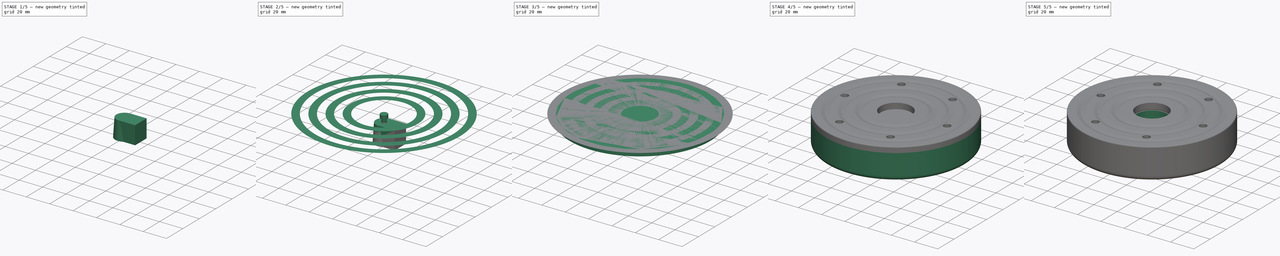
[diagram: build sequence overview — one tinted view per stage of 5, left to right]
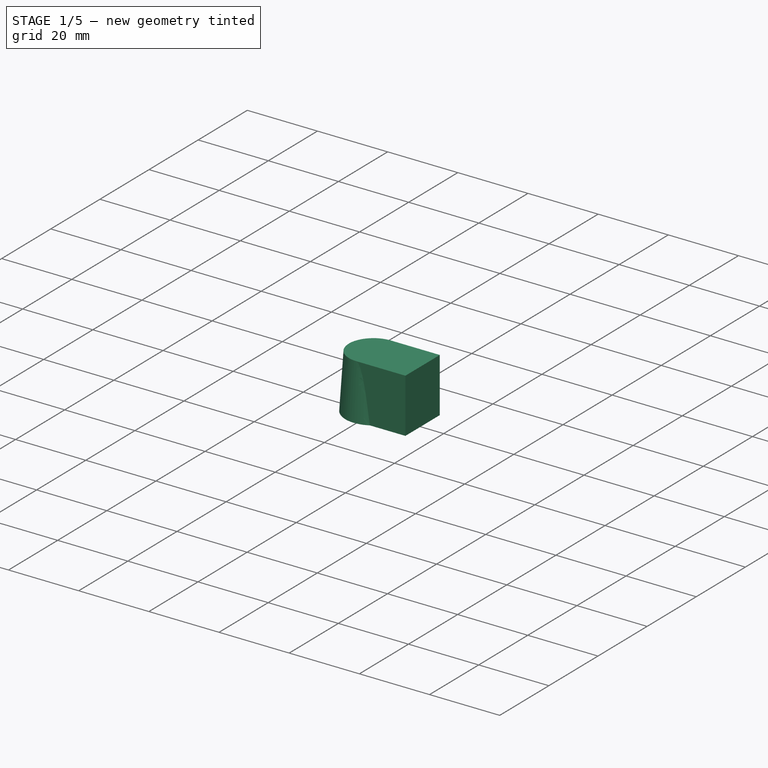
[diagram: stage 1 of 5 — iso view after this stage's code; geometry added in this stage tinted green]
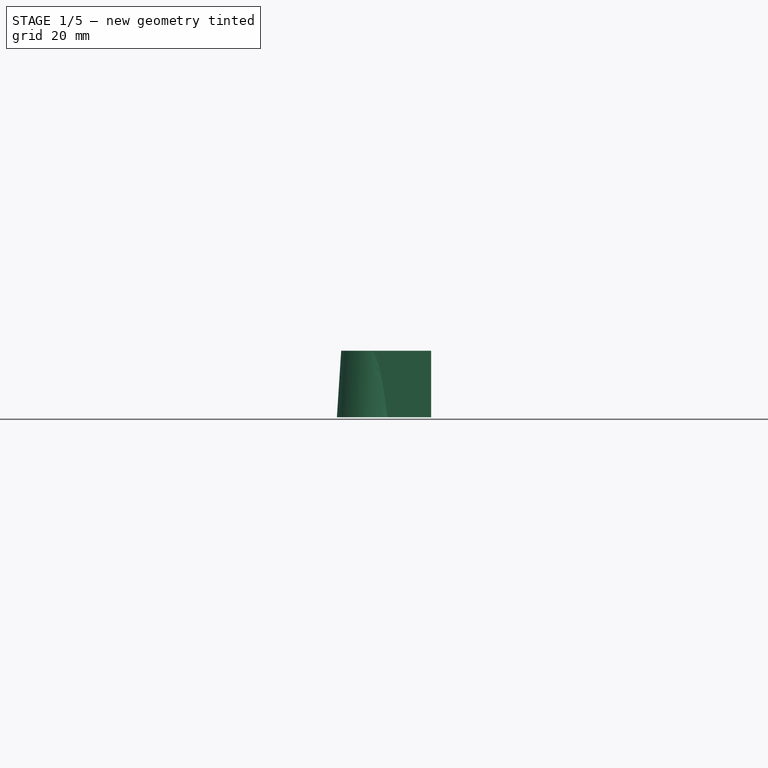
[diagram: stage 1 of 5 — front view after this stage's code; geometry added in this stage tinted green]
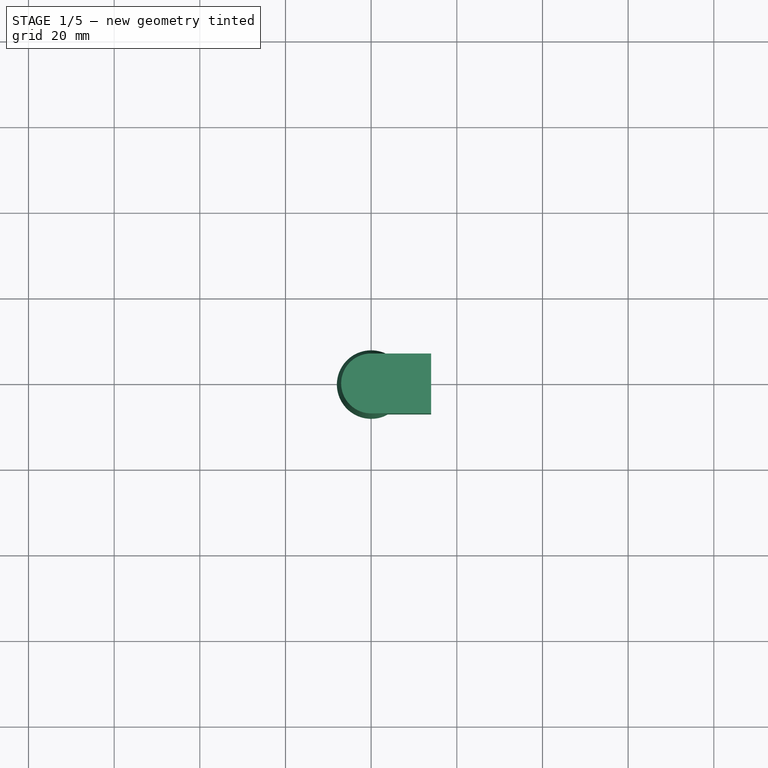
[diagram: stage 1 of 5 — top view after this stage's code; geometry added in this stage tinted green]
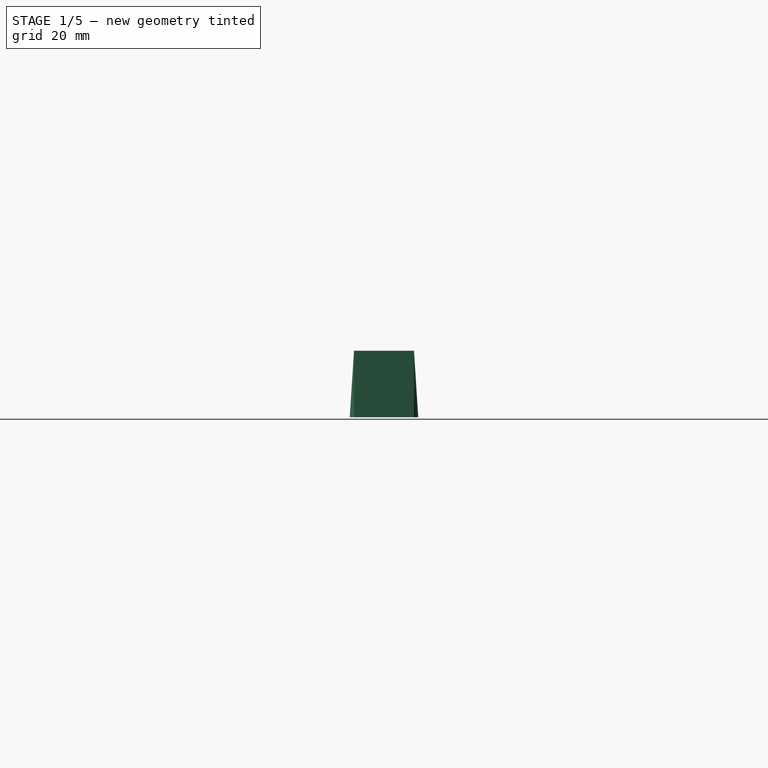
[diagram: stage 1 of 5 — right view after this stage's code; geometry added in this stage tinted green]
FCSTD DOCUMENT  (FreeCAD 0.21R33771 (Git))
Label: weight_disk_smaller
License: All rights reserved
LicenseURL: http://en.wikipedia.org/wiki/All_rights_reserved
objects: Part::Cylinder×11, Part::Fillet×6, Part::FeaturePython×6, Part::MultiFuse×6, Part::Cut×5, Part::Revolution×2, Sketcher::SketchObject×1, Part::Circle×1, Part::Cone×1, Part::Box×1
note: 38 computed .brp shape members not serialized (recipe doc carries the construction recipe); baked Part::Feature solids carry a one-line shape summary decoded from their .brp

FEATURE [Part::Cylinder] Cylinder001  label="outer wall cylinder"
  Angle = 360
  AttacherType = Attacher::AttachEngine3D
  FirstAngle = 0
  Height = 22
  Radius = 60
  SecondAngle = 0
FEATURE [Part::Cylinder] Cylinder002  label="outer inner wall cylinder"
  Angle = 360
  AttacherType = Attacher::AttachEngine3D
  FirstAngle = 0
  Height = 22
  Radius = 56
  SecondAngle = 0
  expr: Height = <<outer wall cylinder>>.Height
  expr: Radius = <<outer wall cylinder>>.Radius - 4 mm
FEATURE [Part::Cylinder] Cylinder004  label="bottom disk"
  Angle = 360
  AttacherType = Attacher::AttachEngine3D
  FirstAngle = 0
  Height = 5
  Radius = 56
  SecondAngle = 0
  expr: Radius = <<outer inner wall cylinder>>.Radius
FEATURE [Part::Cone] Cone
  Angle = 360
  AttacherType = Attacher::AttachEngine3D
  Height = 15.5
  Radius1 = 8
  Radius2 = 7
  expr: Height = <<outer wall cylinder>>.Height - <<bottom disk>>.Height - 1.5 mm
FEATURE [Part::Cylinder] Cylinder010  label="Cylinder"
  Angle = 360
  AttacherType = Attacher::AttachEngine3D
  FirstAngle = 0
  Height = 15.5
  Radius = 2.2
  SecondAngle = 0
  expr: Height = Cone.Height
FEATURE [Part::Box] Box  label="Cube"
  AttacherType = Attacher::AttachEngine3D
  Height = 15.5
  Length = 14
  Placement = pos=(0,-7,0) rot=(0,0,1;0rad)
  Width = 14
  expr: .Placement.Base.y = -Width / 2
  expr: Height = Cone.Height
  expr: Length = <<outer wall cylinder>>.Radius - PolarArray.Radius - (<<outer wall cylinder>>.Radius - <<outer inner wall cylinder>>.Radius) / 2
  expr: Width = Cone.Radius2 * 2
FEATURE [Part::MultiFuse] Fusion006  label="stand fusion"
  Shapes = -> [Box,Cone]
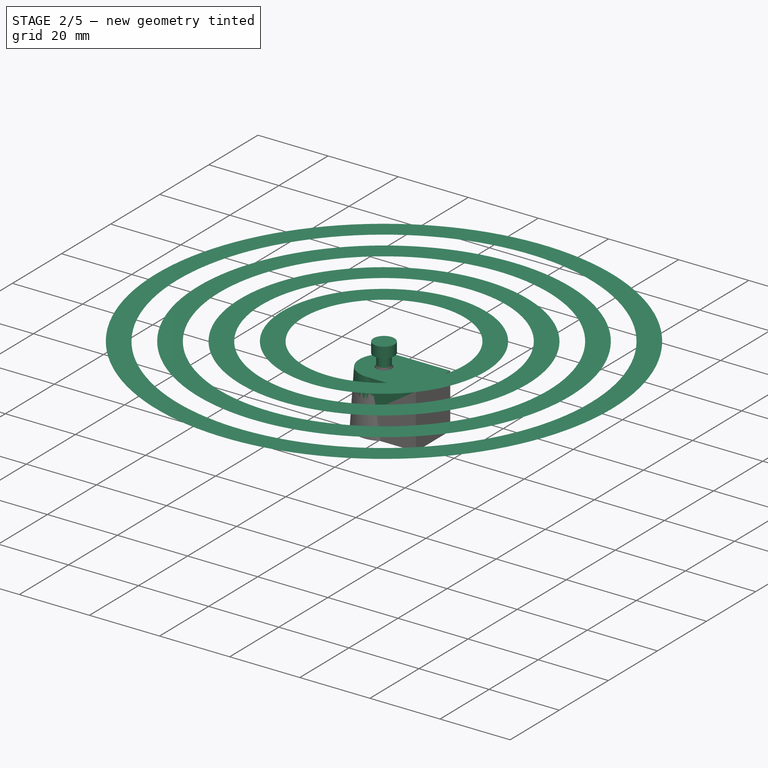
[diagram: stage 2 of 5 — iso view after this stage's code; geometry added in this stage tinted green]
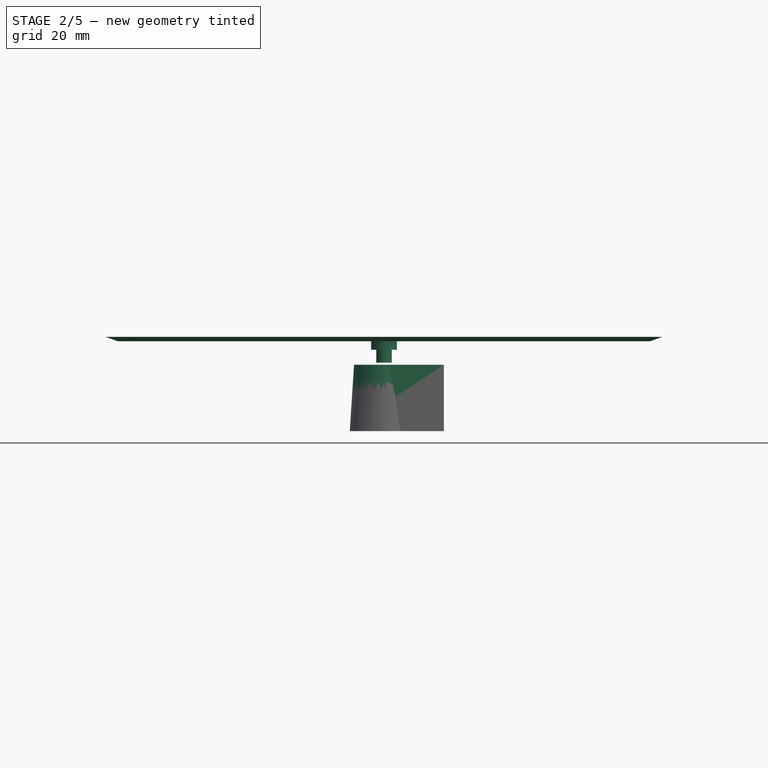
[diagram: stage 2 of 5 — front view after this stage's code; geometry added in this stage tinted green]
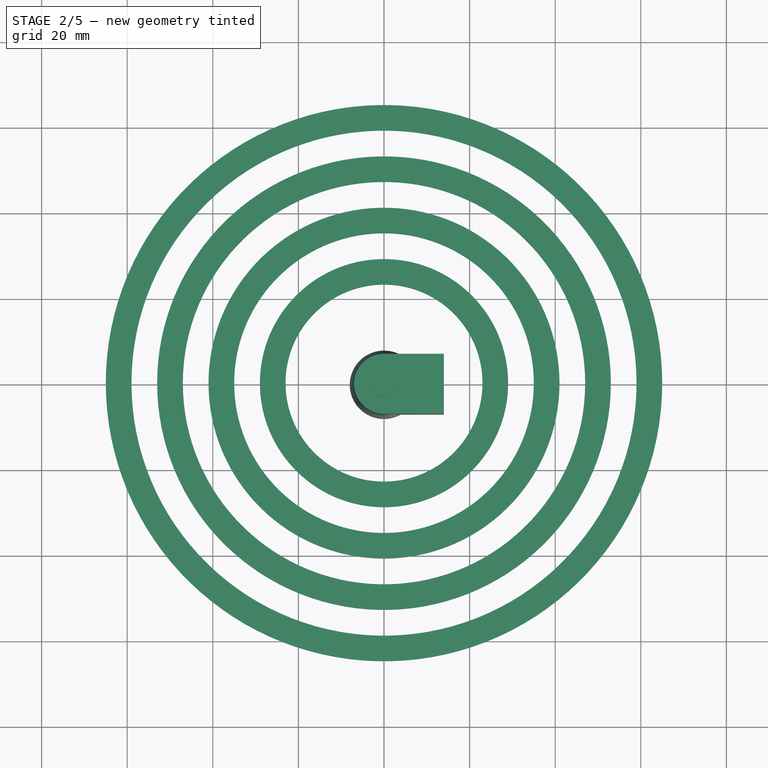
[diagram: stage 2 of 5 — top view after this stage's code; geometry added in this stage tinted green]
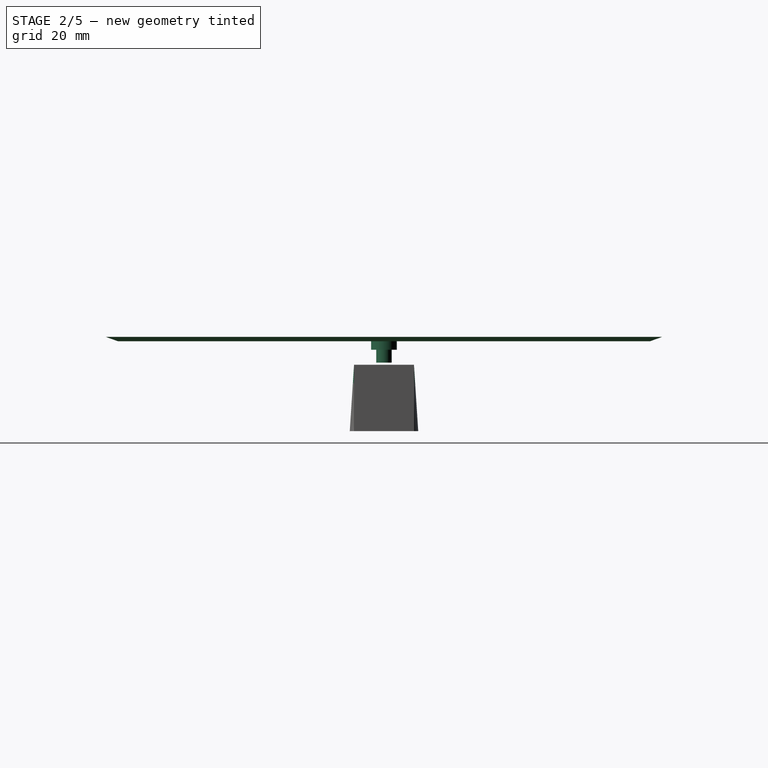
[diagram: stage 2 of 5 — right view after this stage's code; geometry added in this stage tinted green]
FEATURE [Part::Cylinder] Cylinder005  label="top disk center"
  Angle = 360
  AttacherType = Attacher::AttachEngine3D
  FirstAngle = 0
  Height = 6
  Placement = pos=(0,0,21) rot=(0,0,1;0rad)
  Radius = 56
  SecondAngle = 0
  expr: .Placement.Base.z = <<outer wall cylinder>>.Height - 1 mm
  expr: Radius = <<outer inner wall cylinder>>.Radius
FEATURE [Part::Cylinder] Cylinder006  label="top disk"
  Angle = 360
  AttacherType = Attacher::AttachEngine3D
  FirstAngle = 0
  Height = 5
  Placement = pos=(0,0,22) rot=(0,0,1;0rad)
  Radius = 60
  SecondAngle = 0
  expr: .Placement.Base.z = <<outer wall cylinder>>.Height
  expr: Height = <<top disk center>>.Height - 1 mm
  expr: Radius = <<outer wall cylinder>>.Radius
FEATURE [Part::FeaturePython] PolarArray001  # WARN: FeaturePython — macro-defined, semantics opaque (R4)
  Alignment = 0
  AttacherType = Attacher::AttachEngine3D
  CellStart = A1
  Count = 6
  DistributionLaw = 0
  EndInclusive = false
  ExposePlacement = false
  FlipX = false
  FlipZ = false
  GeneratorMode = 0
  MarkerShape = 1
  MarkerSize = 0
  NumElements = 6
  OrientMode = 2
  Radius = 44
  Reverse = false
  SpanEnd = 360
  SpanStart = 0
  Step = 60
  Support = -> [Cylinder001]
  Type = lattice2PolarArray2.PolarArray
  UseArcRadius = false
  UseArcRange = 0
  VSGVersion = 1
  Values = 0.0 | 60.0 | 120.0 | 180.0 | 240.0 | 300.0
  ValuesSource = 2
  isLattice = 1
  expr: Count = PolarArray.Count
  expr: Radius = PolarArray.Radius
FEATURE [Part::Cylinder] Cylinder008  label="bolt hole"
  Angle = 360
  AttacherType = Attacher::AttachEngine3D
  FirstAngle = 0
  Height = 6
  Placement = pos=(0,0,21) rot=(0,0,1;0rad)
  Radius = 1.8
  SecondAngle = 0
  expr: .Placement.Base.z = <<top disk center>>.Placement.Base.z
  expr: Height = <<top disk center>>.Height
FEATURE [Part::FeaturePython] Array001  label="top sketch array"  # Draft array (typed FeaturePython)
  AlwaysSyncPlacement = false
  Angle = 360
  ArrayType = 0
  Axis = (0,0,1)
  Base = -> Sketch
  Center = (0,0,0)
  Count = 4
  ExpandArray = false
  Fuse = false
  IntervalAxis = (0,0,0)
  IntervalX = (12,0,0)
  IntervalY = (0,100,0)
  IntervalZ = (0,0,100)
  NumberCircles = 3
  NumberPolar = 5
  NumberX = 4
  NumberY = 1
  NumberZ = 1
  PlacementList = 4 placements: arithmetic series from (0,0,0) step (12,0,0) to (36,0,0)
  RadialDistance = 50
  ScaleList = (4) [(1,1,1),(1,1,1),(1,1,1),(1,1,1)]
  Symmetry = 1
  TangentialDistance = 25
FEATURE [Part::Revolution] Revolve001
  Angle = 0
  Axis = (0,0,1)
  AxisLink = -> Circle004 [Edge1]
  Base = (0,0,0)
  FaceMakerClass = Part::FaceMakerBullseye
  Placement = pos=(0,0,27) rot=(0,1,0;3.14159rad)
  Solid = true
  Source = -> Array001
  Symmetric = false
  expr: .Placement.Base.z = <<top disk>>.Placement.Base.z + <<top disk>>.Height
FEATURE [Part::Cylinder] Cylinder009  label="bolt head hole"
  Angle = 360
  AttacherType = Attacher::AttachEngine3D
  FirstAngle = 0
  Height = 3
  Placement = pos=(0,0,24) rot=(0,0,1;0rad)
  Radius = 3
  SecondAngle = 0
  expr: .Placement.Base.z = <<bolt hole>>.Placement.Base.z + <<bolt hole>>.Height - Height
FEATURE [Part::MultiFuse] Fusion005  label="bolt hole fusion"
  Shapes = -> [Cylinder008,Cylinder009]
FEATURE [Part::Cut] Cut004  label="stand with hole"
  Base = -> Fusion006
  Placement = pos=(0,0,5) rot=(0,0,1;0rad)
  Tool = -> Cylinder010
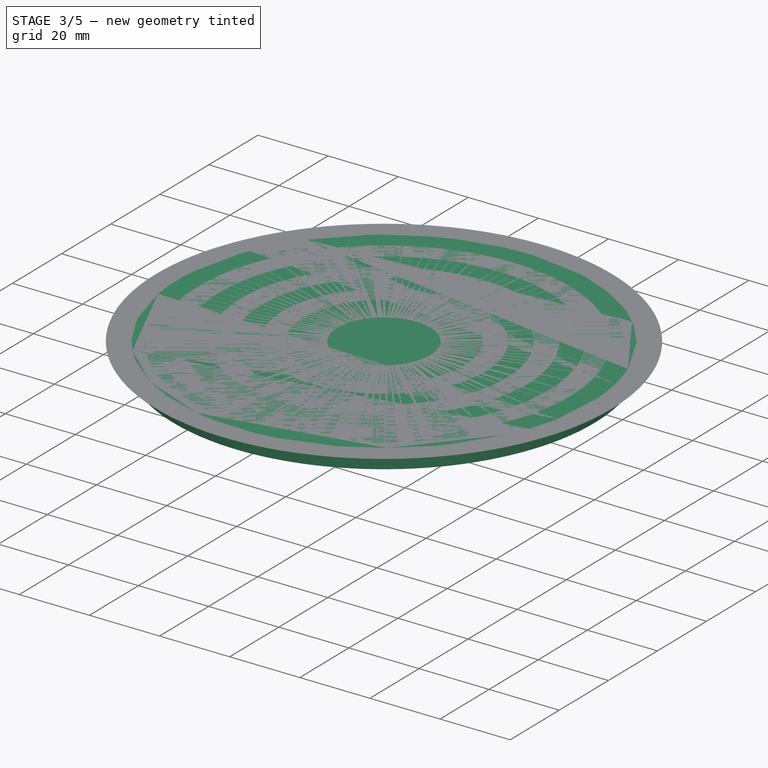
[diagram: stage 3 of 5 — iso view after this stage's code; geometry added in this stage tinted green]
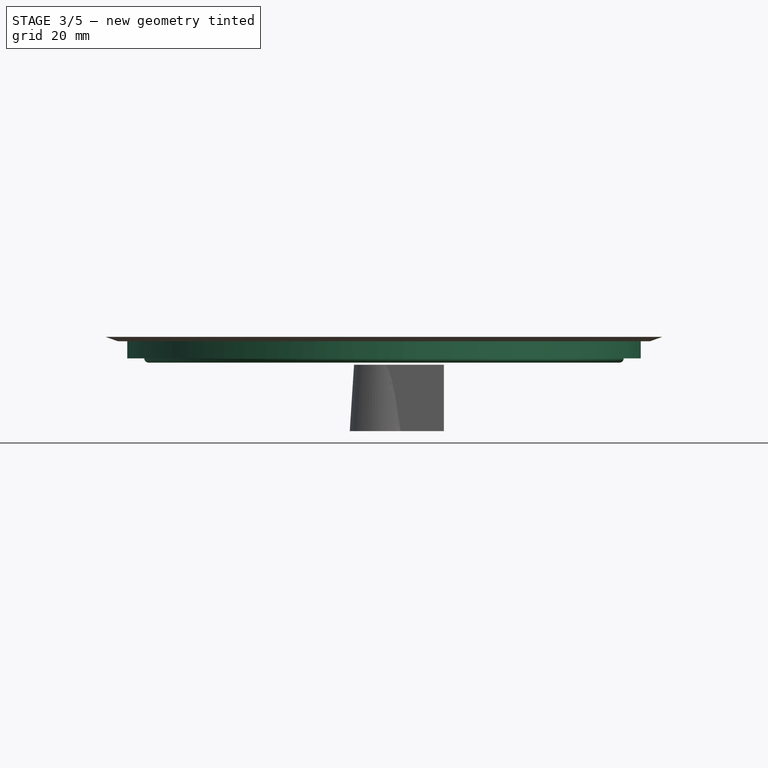
[diagram: stage 3 of 5 — front view after this stage's code; geometry added in this stage tinted green]
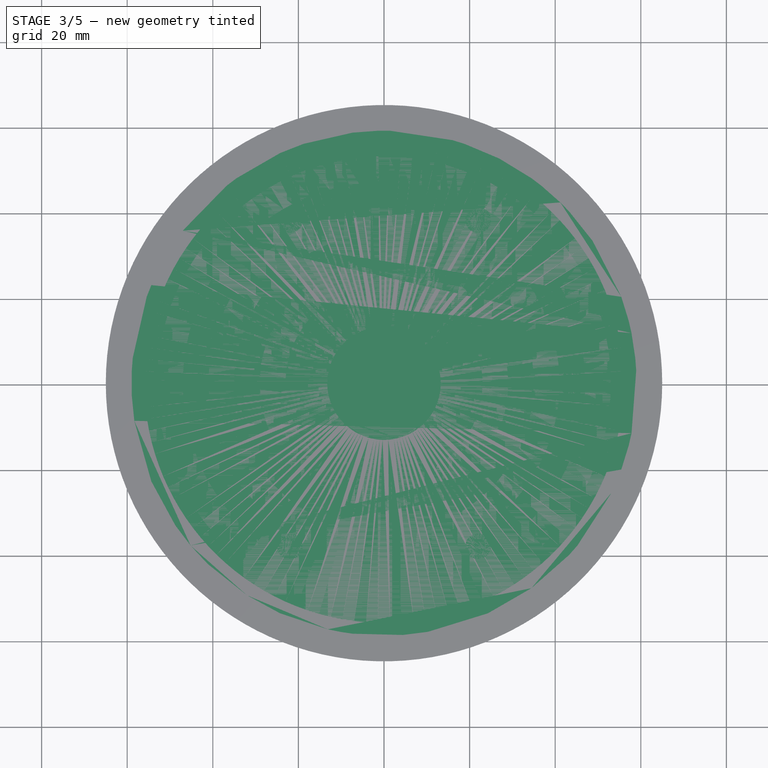
[diagram: stage 3 of 5 — top view after this stage's code; geometry added in this stage tinted green]
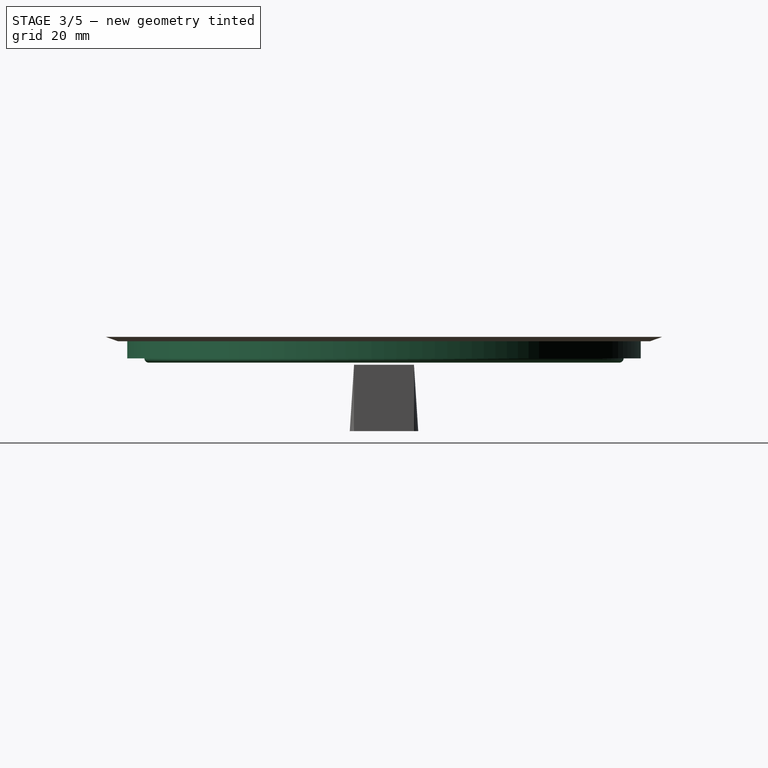
[diagram: stage 3 of 5 — right view after this stage's code; geometry added in this stage tinted green]
FEATURE [Part::Cylinder] Cylinder007  label="top central hole"
  Angle = 360
  AttacherType = Attacher::AttachEngine3D
  FirstAngle = 0
  Height = 6
  Placement = pos=(0,0,21) rot=(0,0,1;0rad)
  Radius = 13.25
  SecondAngle = 0
  expr: .Placement.Base.z = <<top disk center>>.Placement.Base.z
  expr: Height = <<top disk center>>.Height
FEATURE [Part::Cut] Cut003  label="top disk center fusion"
  Base = -> Cylinder005
  Tool = -> Cylinder007
FEATURE [Part::Fillet] Fillet003  label="top disk center fillet"
  Base = -> Cut003
  Edges = 2 edges r=1: [Edge2,Edge4]
FEATURE [Part::Fillet] Fillet004  label="top disk fillet001"
  Base = -> Cylinder006
  Edges = 1 edges r=1: [Edge3]
FEATURE [Part::FeaturePython] Populate001  label="Populate PolarArray with Tube001"  # WARN: FeaturePython — macro-defined, semantics opaque (R4)
  Copying = 0
  ExposePlacement = false
  MarkerShape = 1
  MarkerSize = 0
  NumElements = 0
  Object = -> Fusion005
  OutputCompounding = 1
  PlacementsTo = -> PolarArray001
  Referencing = 0
  Type = lattice2PopulateCopies.LatticePopulateCopies
  isLattice = 0
FEATURE [Part::MultiFuse] Fusion004  label="top hole fusion"
  Shapes = -> [Cylinder007,Populate001,Revolve001]
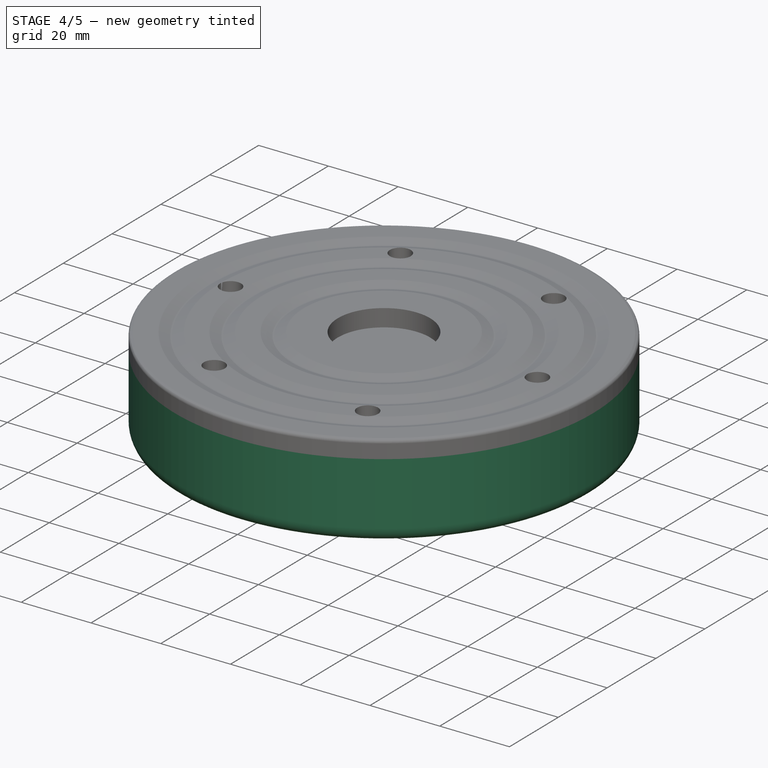
[diagram: stage 4 of 5 — iso view after this stage's code; geometry added in this stage tinted green]
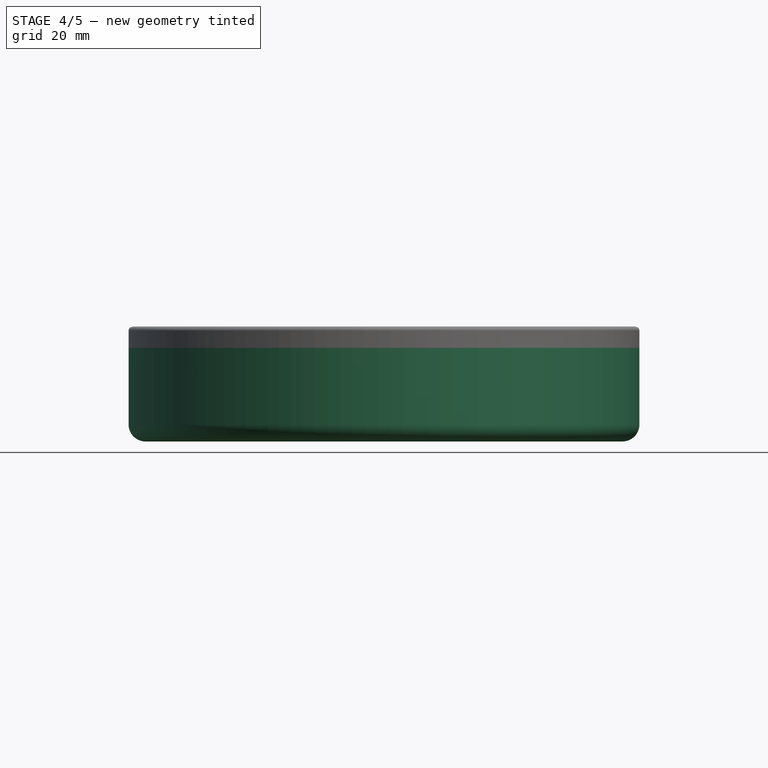
[diagram: stage 4 of 5 — front view after this stage's code; geometry added in this stage tinted green]
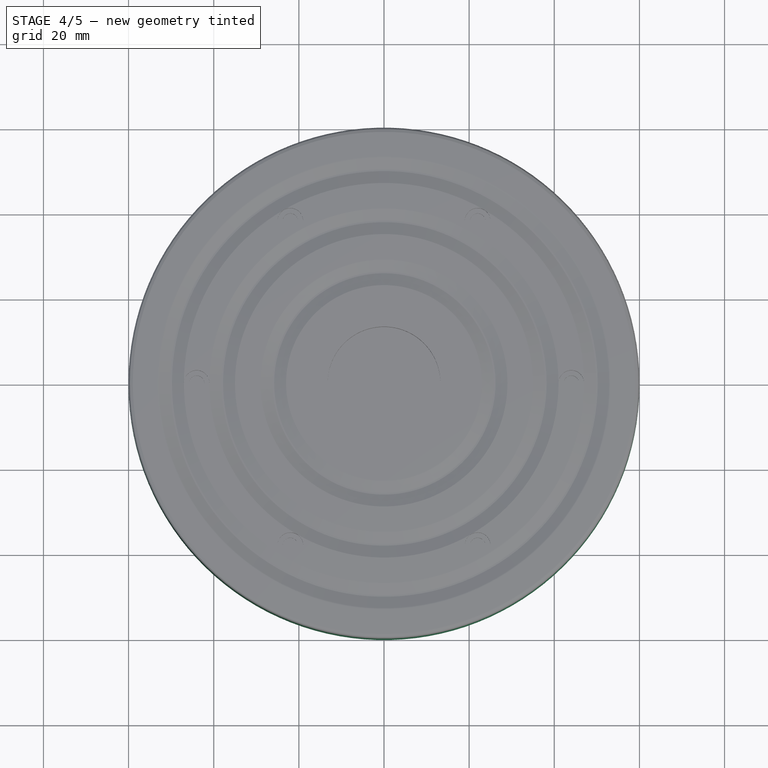
[diagram: stage 4 of 5 — top view after this stage's code; geometry added in this stage tinted green]
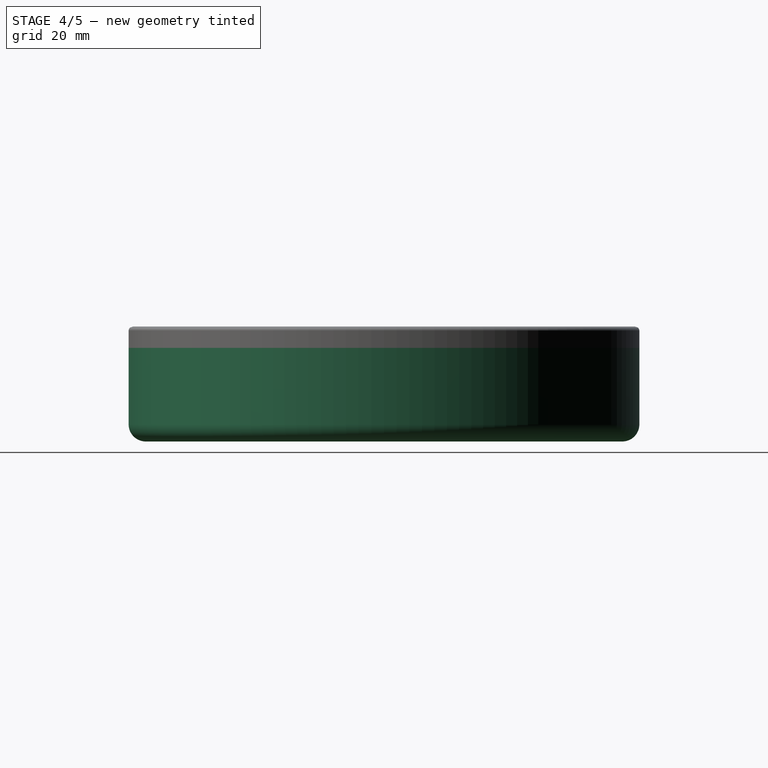
[diagram: stage 4 of 5 — right view after this stage's code; geometry added in this stage tinted green]
FEATURE [Part::Cylinder] Cylinder  label="central hole"
  Angle = 360
  AttacherType = Attacher::AttachEngine3D
  FirstAngle = 0
  Height = 22
  Radius = 13.25
  SecondAngle = 0
  expr: Height = <<outer wall cylinder>>.Height
FEATURE [Part::Cylinder] Cylinder003  label="central hole wall"
  Angle = 360
  AttacherType = Attacher::AttachEngine3D
  FirstAngle = 0
  Height = 21
  Radius = 17.25
  SecondAngle = 0
  expr: Height = <<central hole>>.Height - (<<top disk center>>.Height - <<top disk>>.Height)
  expr: Radius = <<central hole>>.Radius + 4 mm
FEATURE [Sketcher::SketchObject] Sketch
  FullyConstrained = true
  Placement = pos=(0,0,0) rot=(1,0,0;1.5708rad)
  sketch-geometry (4):
    g0: LineSegment StartX=-62.2 StartY=1 StartZ=0 EndX=-65 EndY=0 EndZ=0
    g1: LineSegment StartX=-62.2 StartY=1 StartZ=0 EndX=-61.8 EndY=1 EndZ=0
    g2: LineSegment StartX=-61.8 StartY=1 StartZ=0 EndX=-59 EndY=0 EndZ=0
    g3: LineSegment StartX=-65 StartY=0 StartZ=0 EndX=-59 EndY=0 EndZ=0
  constraints (12):
    c: PointOnObject(g0,g-1)
    c: DistanceX(g0,g-1) = 65  'outer_r'
    c: DistanceY(g-1,g0) = 1  'sketch_height'
    c: Coincident(g1,g0)
    c: Horizontal(g1)
    c: Coincident(g2,g1)
    c: Coincident(g3,g0)
    c: Coincident(g3,g2)
    c: DistanceX(g1,g1) = 0.4
    c: Horizontal(g3)
    c: Equal(g0,g2)
    c: DistanceX(g3,g3) = 6
FEATURE [Part::Circle] Circle004  label="Circle"
  Angle1 = 0
  Angle2 = 360
  AttacherType = Attacher::AttachEngine3D
  Radius = 40
FEATURE [Part::Fillet] Fillet  label="outer wall cylinder fillet"
  Base = -> Cylinder001
  Edges = 1 edges r=4: [Edge2]
FEATURE [Part::Fillet] Fillet002  label="central hole wall fillet"
  Base = -> Cylinder003
  Edges = 1 edges r=1: [Edge3]
FEATURE [Part::MultiFuse] Fusion003  label="top fusion"
  Shapes = -> [Fillet003,Fillet004]
FEATURE [Part::Cut] Cut002  label="top cut"
  Base = -> Fusion003
  Tool = -> Fusion004
FEATURE [Part::Fillet] Fillet005  label="top disk fillet"
  Base = -> Cut002
  Edges = 1 edges r=1: [Edge2]
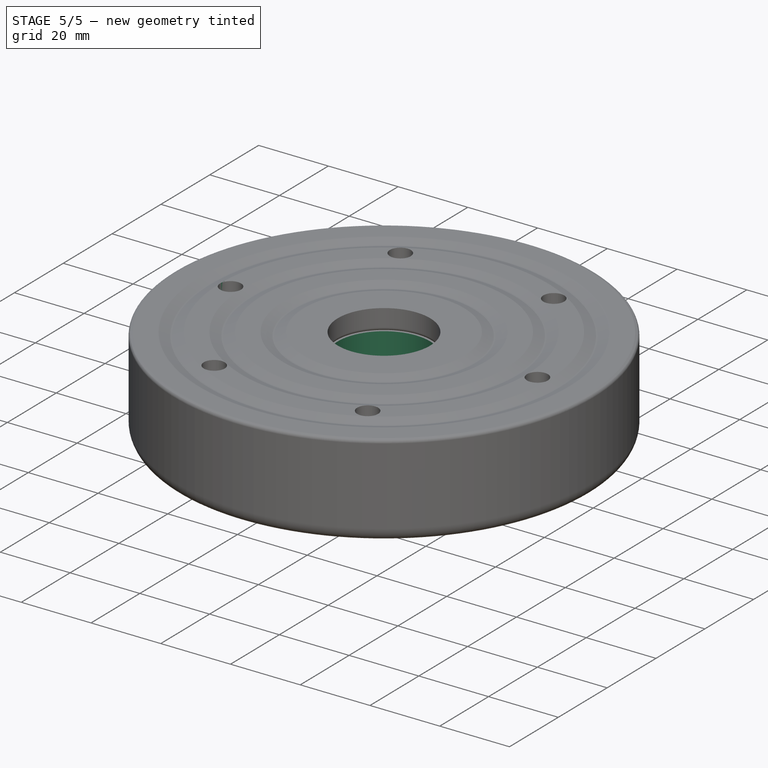
[diagram: stage 5 of 5 — iso view after this stage's code; geometry added in this stage tinted green]
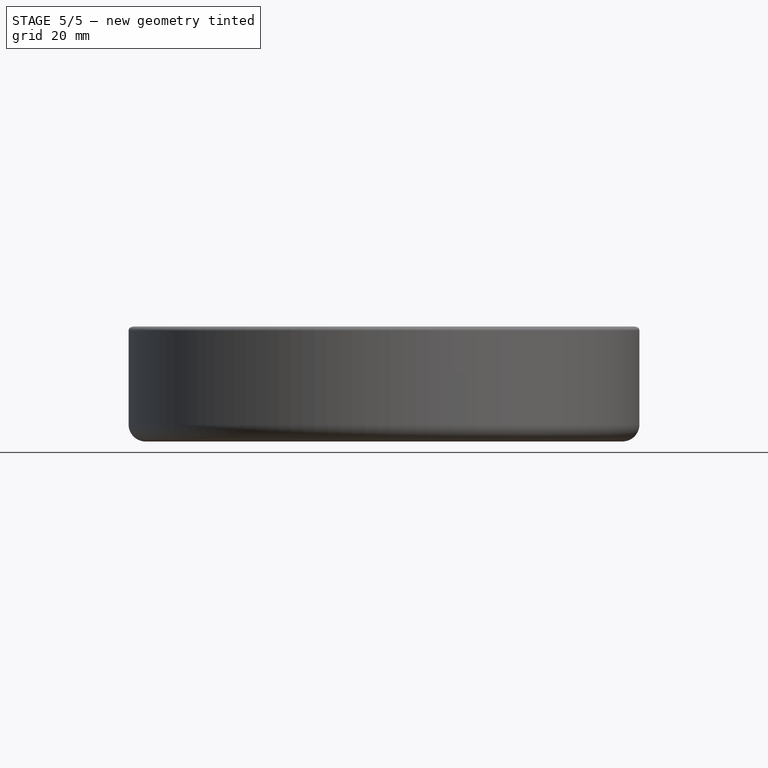
[diagram: stage 5 of 5 — front view after this stage's code; geometry added in this stage tinted green]
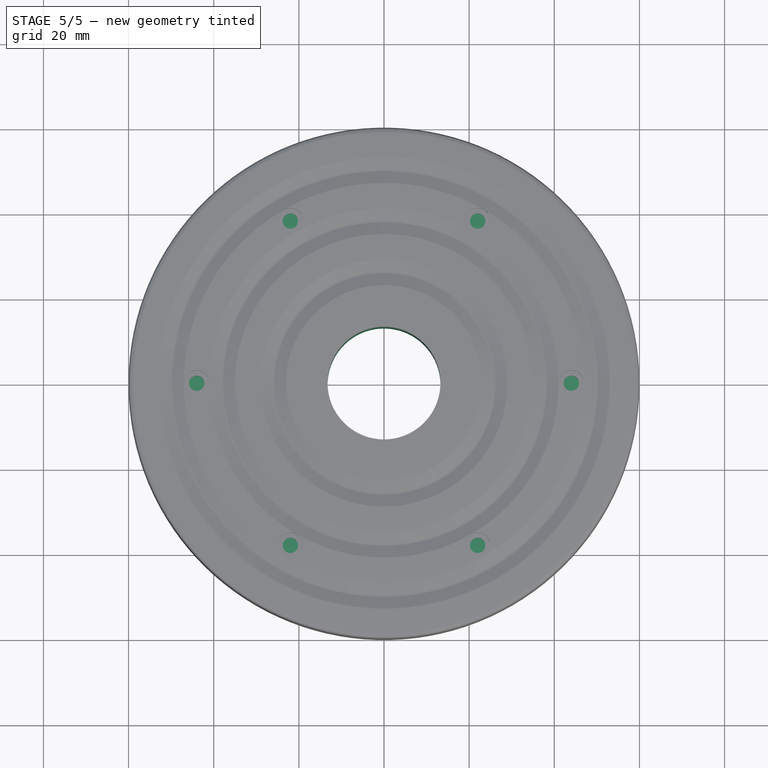
[diagram: stage 5 of 5 — top view after this stage's code; geometry added in this stage tinted green]
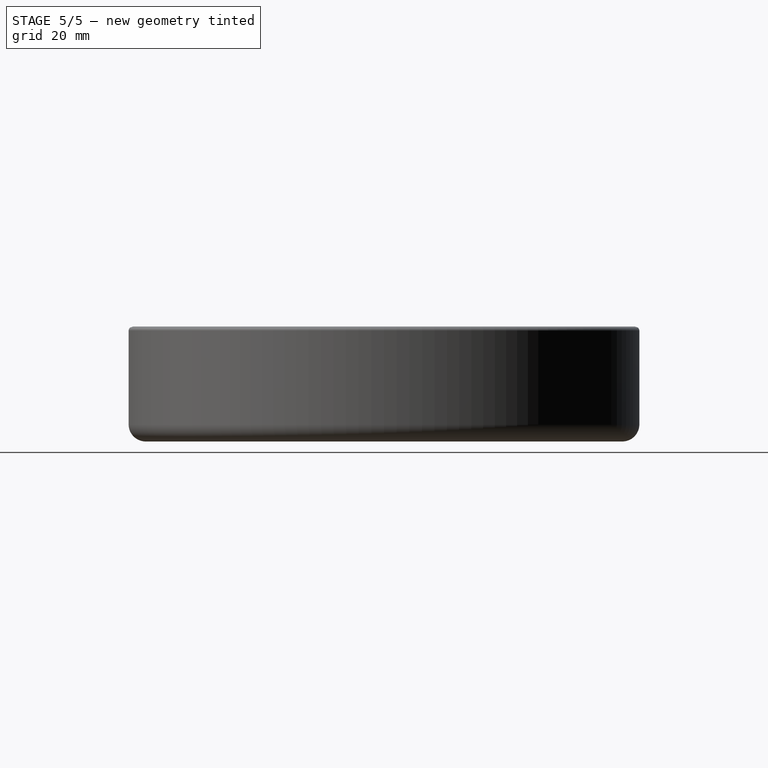
[diagram: stage 5 of 5 — right view after this stage's code; geometry added in this stage tinted green]
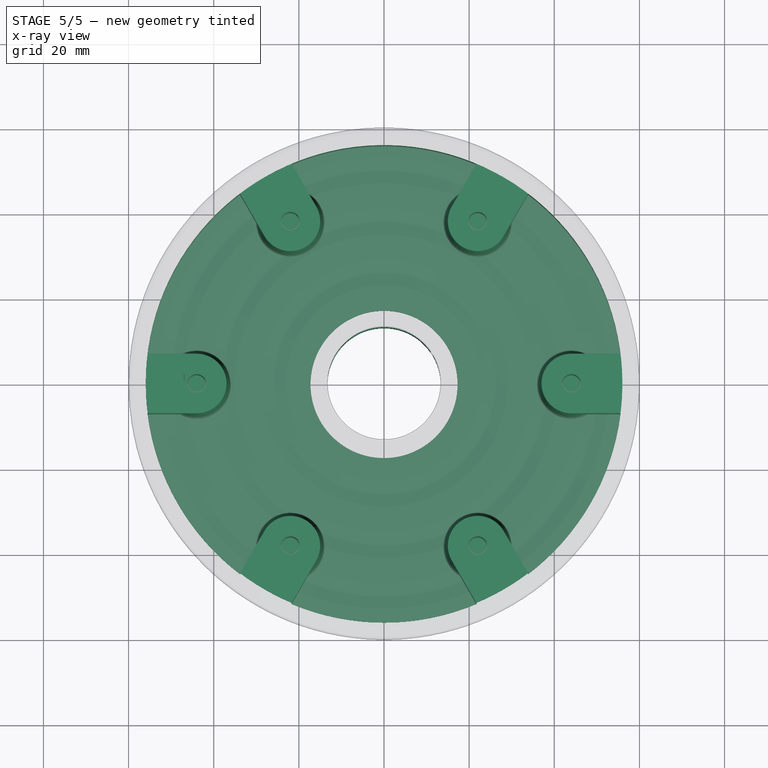
[diagram: stage 5 of 5 — x-ray composite at the top view; earlier geometry ghosted, this stage's added geometry solid]
FEATURE [Part::Cut] Cut  label="outer wall cut"
  Base = -> Fillet
  Tool = -> Cylinder002
FEATURE [Part::FeaturePython] PolarArray  # WARN: FeaturePython — macro-defined, semantics opaque (R4)
  Alignment = 0
  AttacherType = Attacher::AttachEngine3D
  CellStart = A1
  Count = 6
  DistributionLaw = 0
  EndInclusive = false
  ExposePlacement = false
  FlipX = false
  FlipZ = false
  GeneratorMode = 0
  MarkerShape = 1
  MarkerSize = 0
  NumElements = 6
  OrientMode = 2
  Radius = 44
  Reverse = false
  SpanEnd = 360
  SpanStart = 0
  Step = 60
  Support = -> [Cylinder001]
  Type = lattice2PolarArray2.PolarArray
  UseArcRadius = false
  UseArcRange = 0
  VSGVersion = 1
  Values = 0.0 | 60.0 | 120.0 | 180.0 | 240.0 | 300.0
  ValuesSource = 2
  isLattice = 1
FEATURE [Part::Fillet] Fillet001  label="outer wall cut fillet"
  Base = -> Cut
  Edges = 1 edges r=1: [Edge4]
FEATURE [Part::FeaturePython] Array  label="sketch array"  # Draft array (typed FeaturePython)
  AlwaysSyncPlacement = false
  Angle = 360
  ArrayType = 0
  Axis = (0,0,1)
  Base = -> Sketch
  Center = (0,0,0)
  Count = 4
  ExpandArray = false
  Fuse = false
  IntervalAxis = (0,0,0)
  IntervalX = (10,0,0)
  IntervalY = (0,100,0)
  IntervalZ = (0,0,100)
  NumberCircles = 3
  NumberPolar = 5
  NumberX = 4
  NumberY = 1
  NumberZ = 1
  PlacementList = 4 placements: arithmetic series from (0,0,0) step (10,0,0) to (30,0,0)
  RadialDistance = 50
  ScaleList = (4) [(1,1,1),(1,1,1),(1,1,1),(1,1,1)]
  Symmetry = 1
  TangentialDistance = 25
FEATURE [Part::Revolution] Revolve
  Angle = 0
  Axis = (0,0,1)
  AxisLink = -> Circle004 [Edge1]
  Base = (0,0,0)
  FaceMakerClass = Part::FaceMakerBullseye
  Solid = true
  Source = -> Array
  Symmetric = false
FEATURE [Part::MultiFuse] Fusion002  label="hole fusion"
  Shapes = -> [Cylinder,Revolve]
FEATURE [Part::FeaturePython] Populate  label="Populate PolarArray with Tube"  # WARN: FeaturePython — macro-defined, semantics opaque (R4)
  Copying = 0
  ExposePlacement = false
  MarkerShape = 1
  MarkerSize = 0
  NumElements = 0
  Object = -> Cut004
  OutputCompounding = 1
  PlacementsTo = -> PolarArray
  Referencing = 0
  Type = lattice2PopulateCopies.LatticePopulateCopies
  isLattice = 0
FEATURE [Part::MultiFuse] Fusion
  Shapes = -> [Cylinder004,Fillet001,Fillet002,Populate]
FEATURE [Part::Cut] Cut001  label="bottom part cut"
  Base = -> Fusion
  Tool = -> Fusion002
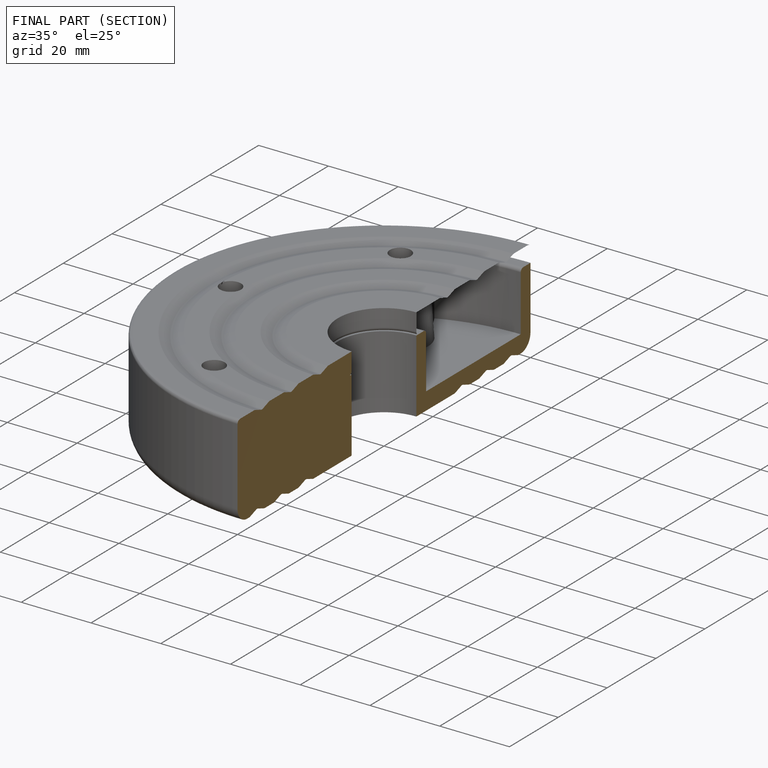
[diagram: finished part — half-section view (interior)]
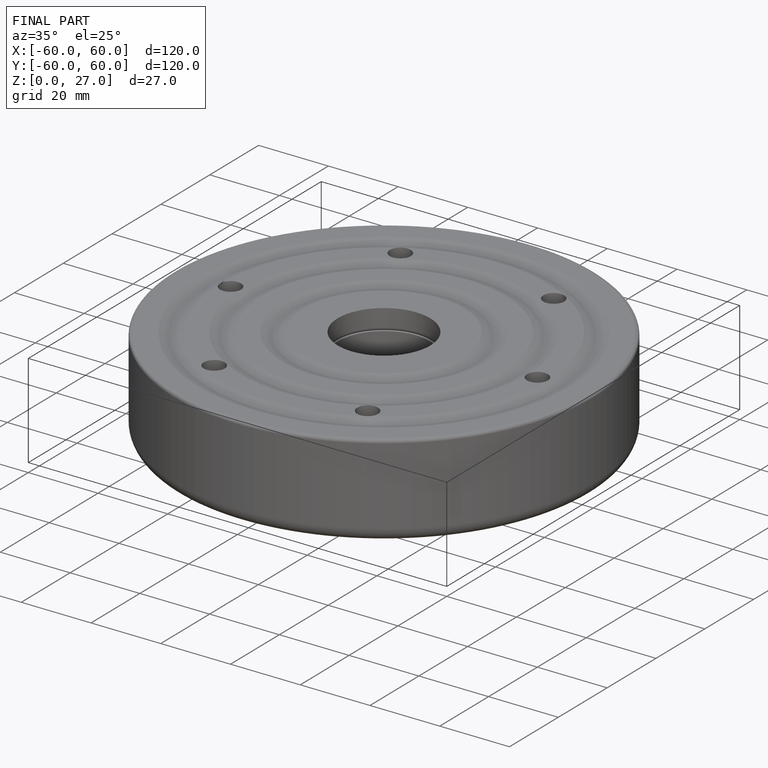
[diagram: finished part — iso view with bounding-box wireframe]
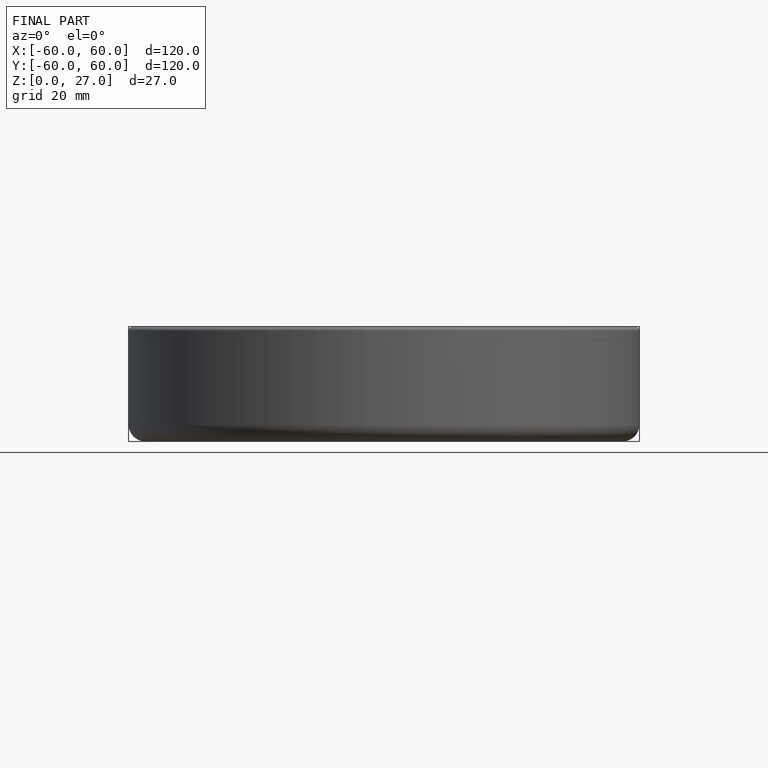
[diagram: finished part — front view with bounding-box wireframe]
